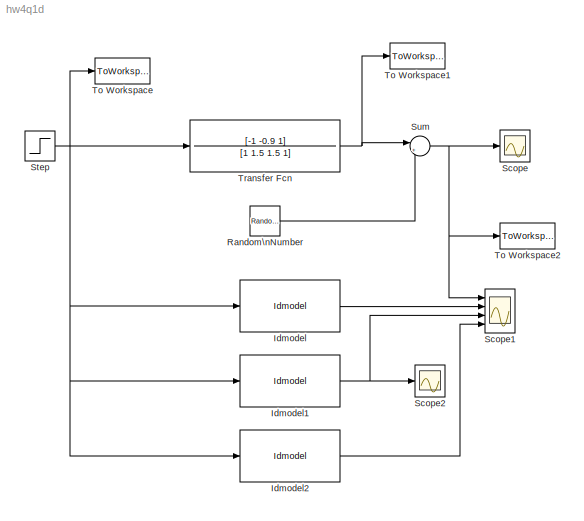
MODEL hw4q1d
KIND model
BLOCK [Reference] Idmodel  REF=slident/Models/Idmodel  (lib defined in mdl_f7d4911ca73a)
  IC = 0
  Ports = [1, 1]
  SID = 9
  SourceBlock = slident/Models/Idmodel
  SourceProductBaseCode = ID
  SourceProductName = System Identification Toolbox
  SourceType = Idmodel Block
  noi = off
  seed = []
  sys = arx_n_321
BLOCK [Reference] Idmodel1  REF=slident/Models/Idmodel  (lib defined in mdl_f7d4911ca73a)
  IC = 0
  Ports = [1, 1]
  SID = 10
  SourceBlock = slident/Models/Idmodel
  SourceProductBaseCode = ID
  SourceProductName = System Identification Toolbox
  SourceType = Idmodel Block
  noi = off
  seed = []
  sys = arx_n_541
BLOCK [Reference] Idmodel2  REF=slident/Models/Idmodel  (lib defined in mdl_f7d4911ca73a)
  IC = 0
  Ports = [1, 1]
  SID = 13
  SourceBlock = slident/Models/Idmodel
  SourceProductBaseCode = ID
  SourceProductName = System Identification Toolbox
  SourceType = Idmodel Block
  noi = off
  seed = []
  sys = arx_n_11101
BLOCK [RandomNumber] Random\nNumber
  SID = 4
  SampleTime = 0.01
  Variance = 0.001
BLOCK [Scope] Scope
  Floating = off
  NumInputPorts = 1
  Ports = [1]
  SID = 5
  ScopeSpecificationString = Simulink.scopes.TimeScopeBlockCfg('CurrentConfiguration', extmgr.ConfigurationSet(extmgr.Configuration('Core','General UI',true),extmgr.Configuration('Core','Source UI',true),extmgr.Configuration('Sources','WiredSimulink',true),extmgr.Configuration('Visuals','Time Domain',true,'SerializedDisplays',{struct('MinYLimReal','-0.85512','MaxYLimReal','1.94951','YLabelReal','','MinYLimMag','0.00000','MaxY...<+1323ch>
BLOCK [Scope] Scope1
  Floating = off
  NumInputPorts = 4
  Ports = [4]
  SID = 11
  ScopeSpecificationString = Simulink.scopes.TimeScopeBlockCfg('CurrentConfiguration', extmgr.ConfigurationSet(extmgr.Configuration('Core','General UI',true),extmgr.Configuration('Core','Source UI',true),extmgr.Configuration('Sources','WiredSimulink',true,'DataLoggingVariableName','ScopeData1'),extmgr.Configuration('Visuals','Time Domain',true,'SerializedDisplays',{struct('MinYLimReal','-0.85512','MaxYLimReal','1.94951','YLab...<+1526ch>
BLOCK [Scope] Scope2
  Floating = off
  NumInputPorts = 1
  Ports = [1]
  SID = 12
  ScopeSpecificationString = Simulink.scopes.TimeScopeBlockCfg('CurrentConfiguration', extmgr.ConfigurationSet(extmgr.Configuration('Core','General UI',true),extmgr.Configuration('Core','Source UI',true),extmgr.Configuration('Sources','WiredSimulink',true,'DataLoggingVariableName','ScopeData2'),extmgr.Configuration('Visuals','Time Domain',true,'SerializedDisplays',{struct('MinYLimReal','-0.7588','MaxYLimReal','1.44644','YLabe...<+1396ch>
BLOCK [Step] Step
  SID = 2
  SampleTime = 0.01
BLOCK [Sum] Sum
  IconShape = round
  InputSameDT = off
  Inputs = |++
  OutDataTypeStr = Inherit: Inherit via internal rule
  Ports = [2, 1]
  SID = 3
  SaturateOnIntegerOverflow = off
BLOCK [ToWorkspace] To Workspace
  FixptAsFi = on
  MaxDataPoints = inf
  Ports = [1]
  SID = 6
  SampleTime = -1
  VariableName = input
BLOCK [ToWorkspace] To Workspace1
  FixptAsFi = on
  MaxDataPoints = inf
  Ports = [1]
  SID = 7
  SampleTime = -1
  VariableName = output
BLOCK [ToWorkspace] To Workspace2
  FixptAsFi = on
  MaxDataPoints = inf
  Ports = [1]
  SID = 8
  SampleTime = -1
  VariableName = outnoise
BLOCK [TransferFcn] Transfer Fcn
  Denominator = [1 1.5 1.5 1]
  Numerator = [-1 -0.9 1]
  SID = 1
NET Idmodel1:1 -> Scope1:3, Scope2:1
LINE Idmodel2:1 -> Scope1:4
LINE Idmodel:1 -> Scope1:2
LINE Random\nNumber:1 -> Sum:2
NET Step:1 -> Idmodel1:1, Idmodel2:1, Idmodel:1, To Workspace:1, Transfer Fcn:1
NET Sum:1 -> Scope1:1, Scope:1, To Workspace2:1
NET Transfer Fcn:1 -> Sum:1, To Workspace1:1
note: NET lines group one-source signal fan-out (src -> all destinations, sorted); 1:1 wires keep LINE
